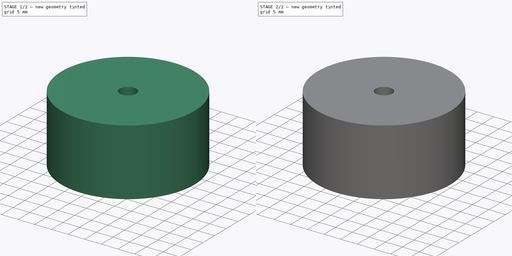
[diagram: build sequence overview — one tinted view per stage of 2, left to right]
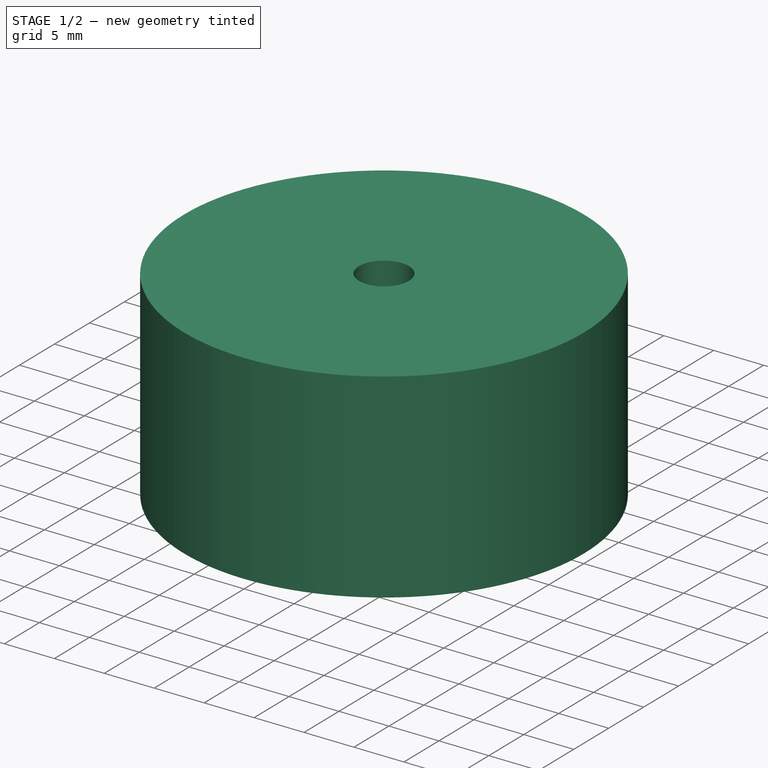
[diagram: stage 1 of 2 — iso view after this stage's code; geometry added in this stage tinted green]
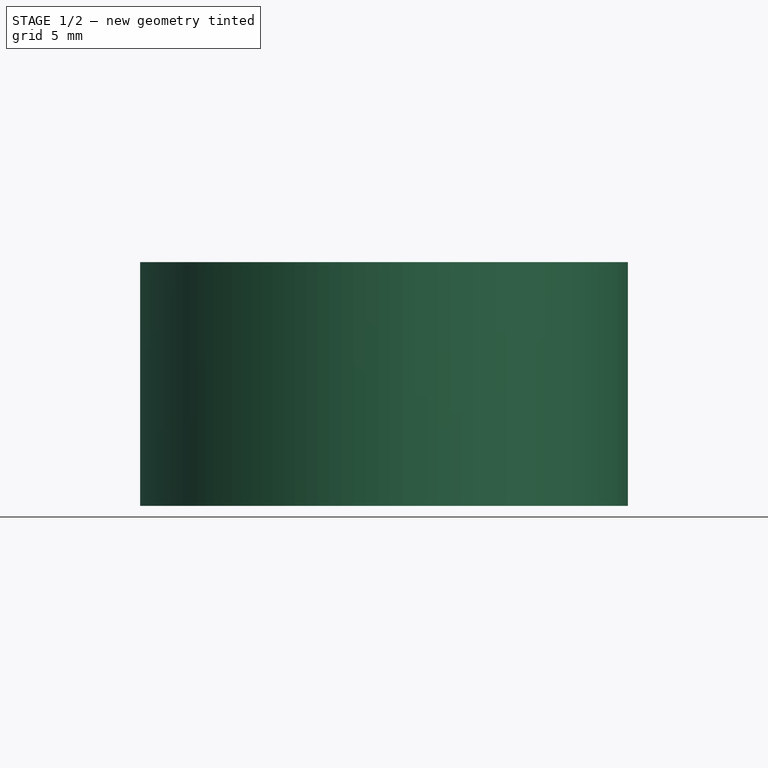
[diagram: stage 1 of 2 — front view after this stage's code; geometry added in this stage tinted green]
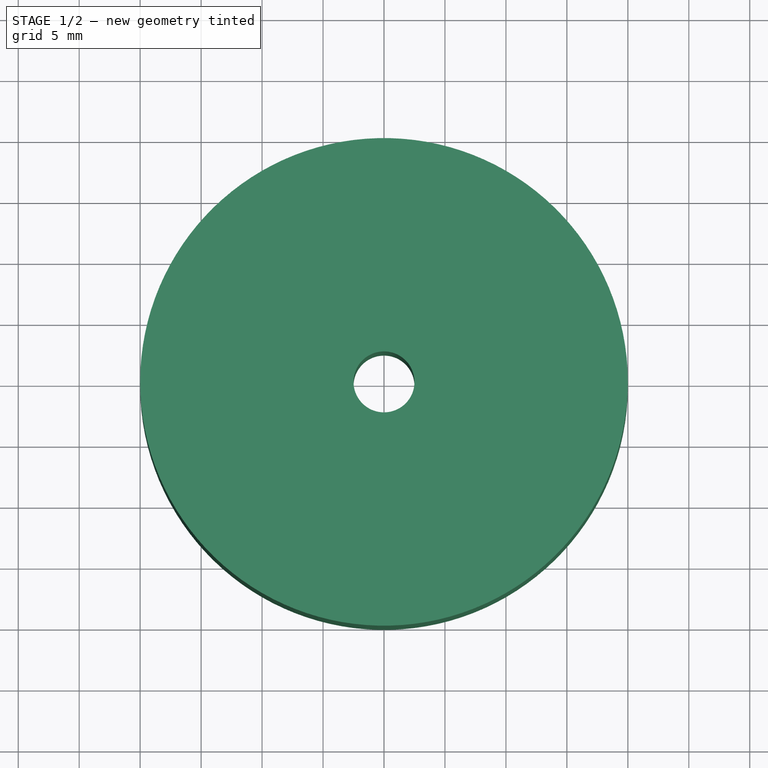
[diagram: stage 1 of 2 — top view after this stage's code; geometry added in this stage tinted green]
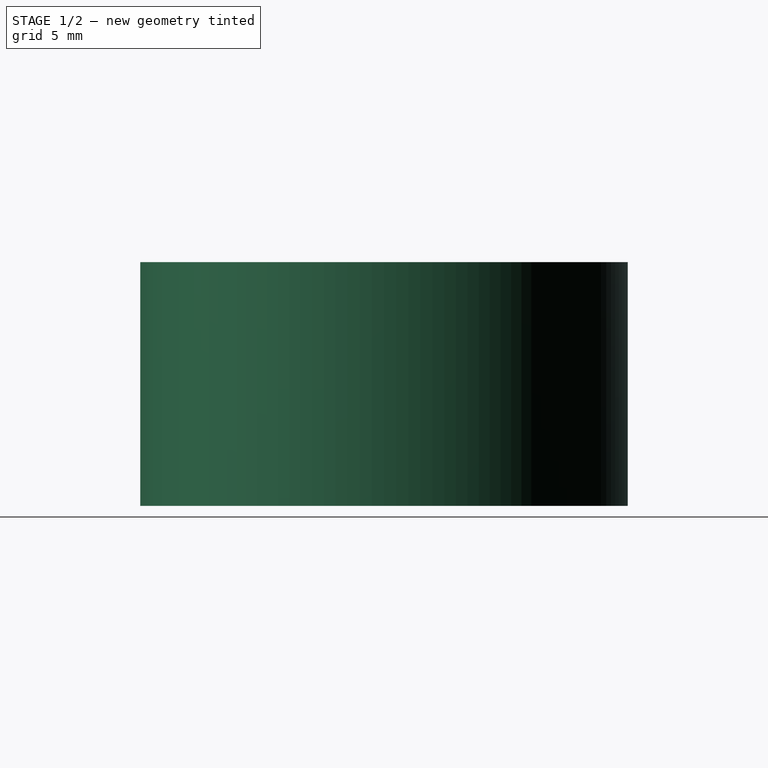
[diagram: stage 1 of 2 — right view after this stage's code; geometry added in this stage tinted green]
FCSTD DOCUMENT  (FreeCAD 0.19R24291 (Git))
Label: Foot Extension
License: All rights reserved
LicenseURL: http://en.wikipedia.org/wiki/All_rights_reserved
objects: Sketcher::SketchObject×2, PartDesign::Pad×2, PartDesign::Body×2
note: 8 computed .brp shape members not serialized (recipe doc carries the construction recipe); baked Part::Feature solids carry a one-line shape summary decoded from their .brp

FEATURE [PartDesign::Body] Body
  Group = -> [Sketch,Pad]
  Origin = -> Origin
  Tip = -> Pad
FEATURE [Sketcher::SketchObject] Sketch001
  FullyConstrained = true
  MapMode = 5
  Support = -> [XY_Plane001]
  sketch-geometry (2):
    g0: Circle CenterX=0 CenterY=0 CenterZ=0 NormalX=0 NormalY=0 NormalZ=1 AngleXU=0 Radius=2.5
    g1: Circle CenterX=0 CenterY=0 CenterZ=0 NormalX=0 NormalY=0 NormalZ=1 AngleXU=0 Radius=20
  constraints (4):
    c: Coincident(g0,g-1)
    c: Coincident(g1,g0)
    c: Radius(g0) = 2.5
    c: Radius(g1) = 20
FEATURE [PartDesign::Pad] Pad001
  Direction = (1,1,1)
  Length = 20
  Length2 = 100
  Profile = -> Sketch001
  Type = 0
FEATURE [PartDesign::Body] Body001
  Group = -> [Sketch001,Pad001]
  Origin = -> Origin001
  Tip = -> Pad001
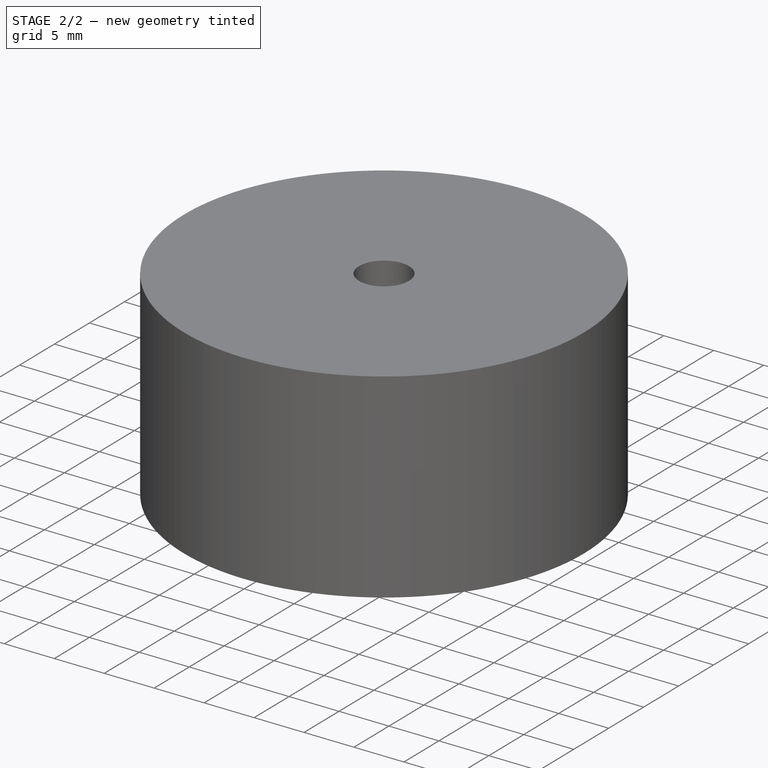
[diagram: stage 2 of 2 — iso view after this stage's code; geometry added in this stage tinted green]
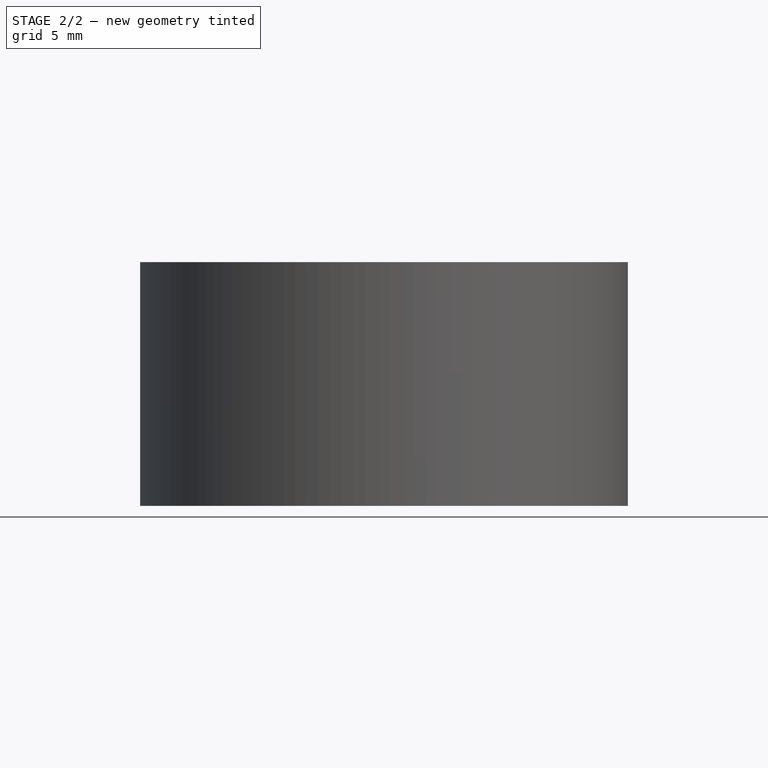
[diagram: stage 2 of 2 — front view after this stage's code; geometry added in this stage tinted green]
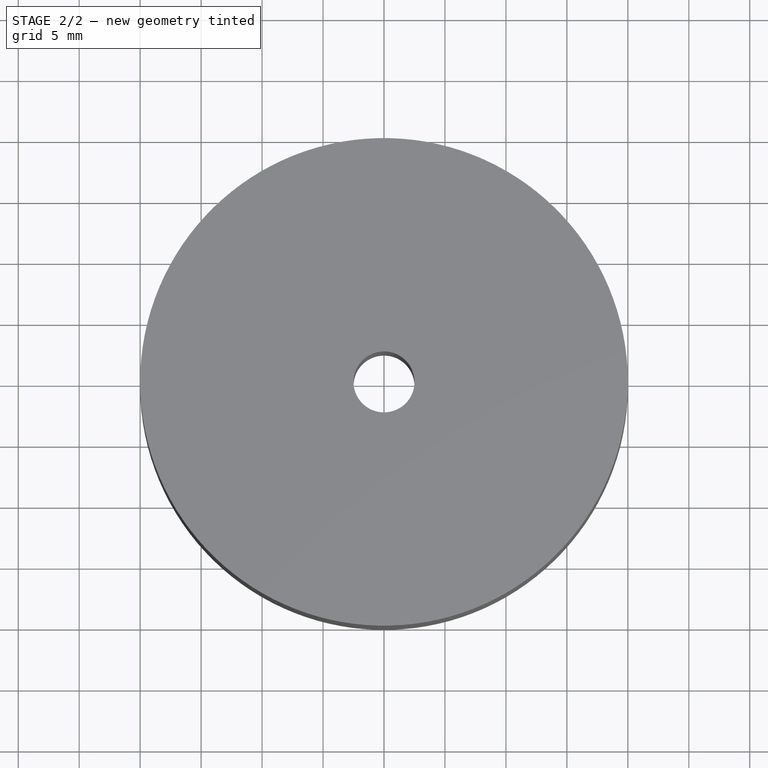
[diagram: stage 2 of 2 — top view after this stage's code; geometry added in this stage tinted green]
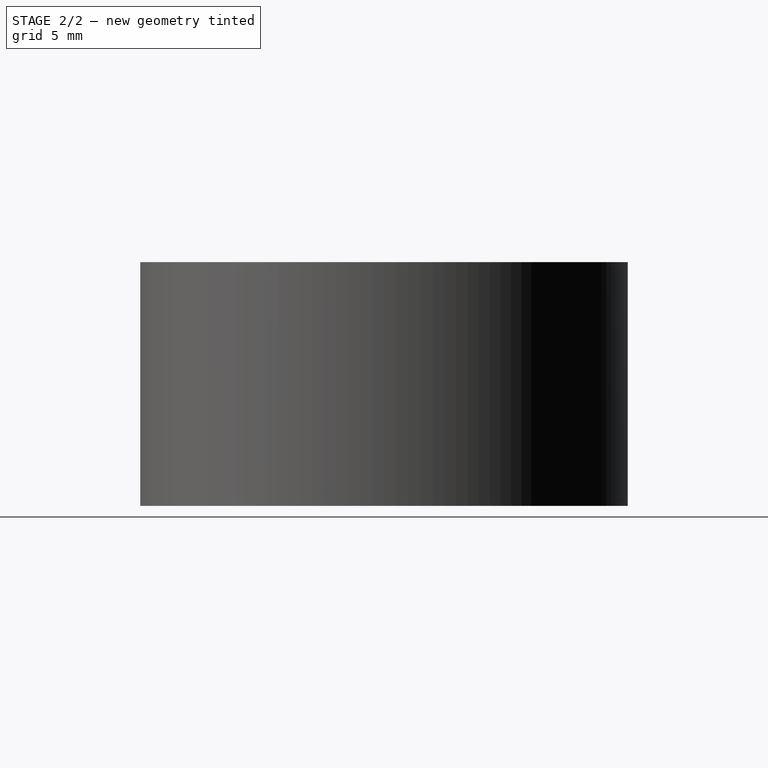
[diagram: stage 2 of 2 — right view after this stage's code; geometry added in this stage tinted green]
FEATURE [Sketcher::SketchObject] Sketch
  FullyConstrained = false
  MapMode = 5
  Support = -> [XY_Plane]
  sketch-geometry (16):
    g0: Circle CenterX=0 CenterY=0 CenterZ=0 NormalX=0 NormalY=0 NormalZ=1 AngleXU=0 Radius=2.5
    g1: Circle CenterX=0 CenterY=0 CenterZ=0 NormalX=0 NormalY=0 NormalZ=1 AngleXU=0 Radius=20
    g2: ArcOfCircle CenterX=0 CenterY=0 CenterZ=0 NormalX=0 NormalY=0 NormalZ=1 AngleXU=0 Radius=16 StartAngle=0.125328 EndAngle=2.23087
    g3: ArcOfCircle CenterX=0 CenterY=0 CenterZ=0 NormalX=0 NormalY=0 NormalZ=1 AngleXU=0 Radius=6 StartAngle=0.339837 EndAngle=2.01636
    g4: LineSegment StartX=5.65685 StartY=2 StartZ=0 EndX=15.8745 EndY=2 EndZ=0
    g5: LineSegment StartX=5.65685 StartY=-2 StartZ=0 EndX=15.8745 EndY=-2 EndZ=0
    g6: LineSegment StartX=-2.58579 StartY=5.41421 StartZ=0 EndX=-9.81076 EndY=12.6392 EndZ=0
    g7: LineSegment StartX=-5.41421 StartY=2.58579 StartZ=0 EndX=-12.6392 EndY=9.81076 EndZ=0
    g8: LineSegment StartX=0 StartY=0 StartZ=0 EndX=-17.9793 EndY=17.9793 EndZ=0
    g9: ArcOfCircle CenterX=0 CenterY=0 CenterZ=0 NormalX=0 NormalY=0 NormalZ=1 AngleXU=0 Radius=6 StartAngle=2.69603 EndAngle=3.58715
    g10: ArcOfCircle CenterX=0 CenterY=0 CenterZ=0 NormalX=0 NormalY=0 NormalZ=1 AngleXU=0 Radius=16 StartAngle=2.48152 EndAngle=3.80166
    g11: LineSegment StartX=-5.41421 StartY=-2.58579 StartZ=0 EndX=-12.6392 EndY=-9.81076 EndZ=0
    g12: LineSegment StartX=-9.81076 StartY=-12.6392 StartZ=0 EndX=-2.58579 EndY=-5.41421 EndZ=0
    g13: LineSegment StartX=0 StartY=0 StartZ=0 EndX=-23.2264 EndY=-23.2264 EndZ=0
    g14: ArcOfCircle CenterX=0 CenterY=0 CenterZ=0 NormalX=0 NormalY=0 NormalZ=1 AngleXU=0 Radius=16 StartAngle=4.05232 EndAngle=6.15786
    g15: ArcOfCircle CenterX=0 CenterY=0 CenterZ=0 NormalX=0 NormalY=0 NormalZ=1 AngleXU=0 Radius=6 StartAngle=4.26683 EndAngle=5.94335
  constraints (46):
    c: Coincident(g0,g-1)
    c: Coincident(g1,g0)
    c: Radius(g0) = 2.5
    c: Radius(g1) = 20
    c: Coincident(g2,g0)
    c: Coincident(g3,g0)
    c: Radius(g3) = 6
    c: Radius(g2) = 16
    c: Horizontal(g4)
    c: Horizontal(g5)
    c: Coincident(g3,g4)
    c: Coincident(g15,g5)
    c: Coincident(g2,g4)
    c: Coincident(g14,g5)
    c: DistanceY(g15,g0) = 2
    c: DistanceY(g0,g3) = 2
    c: PointOnObject(g7,g2)
    c: Angle(g-1,g7) = 2.35619
    c: Distance(g7,g6) = 4
    c: Parallel(g7,g6)
    c: Coincident(g8,g0)
    c: Angle(g-1,g8) = 2.35619
    c: Distance(g7,g8) = 2
    c: Equal(g3,g9)
    c: Coincident(g9,g7)
    c: Coincident(g3,g9)
    c: Coincident(g3,g6)
    c: Equal(g2,g10)
    c: Coincident(g2,g6)
    c: Coincident(g2,g10)
    c: PointOnObject(g10,g7)
    c: PointOnObject(g12,g9)
    c: Parallel(g11,g12)
    c: Distance(g11,g12) = 4
    c: Coincident(g13,g0)
    c: Angle(g13,g-1) = 2.35619
    c: Angle(g12) = 0.785398
    c: Distance(g12,g13) = 2
    c: Equal(g10,g14)
    c: Coincident(g14,g12)
    c: Coincident(g10,g14)
    c: Coincident(g10,g11)
    c: Equal(g9,g15)
    c: Coincident(g9,g11)
    c: Coincident(g9,g15)
    c: PointOnObject(g15,g12)
FEATURE [PartDesign::Pad] Pad
  Direction = (1,1,1)
  Length = 20
  Length2 = 100
  Profile = -> Sketch
  Type = 0
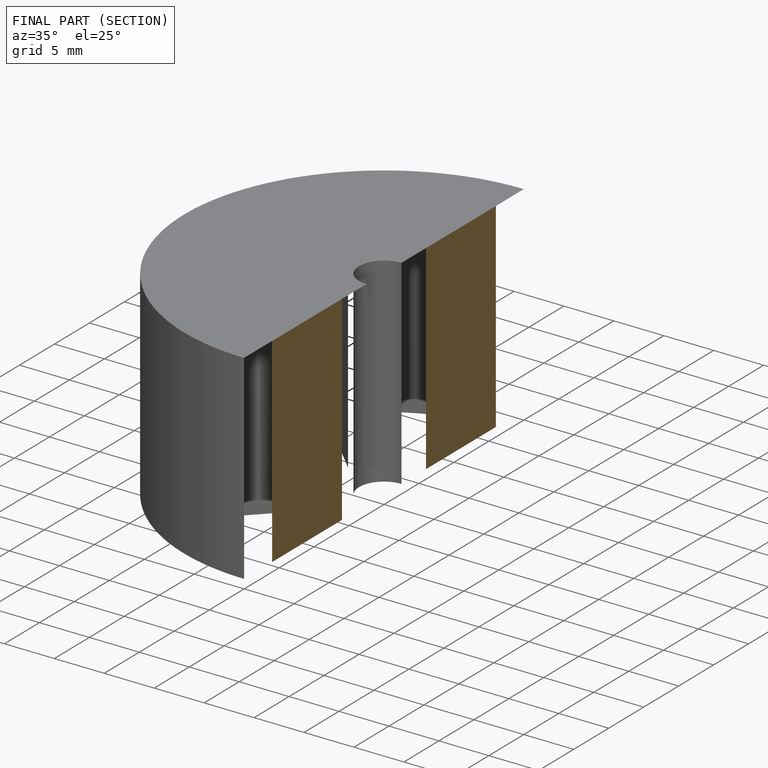
[diagram: finished part — half-section view (interior)]
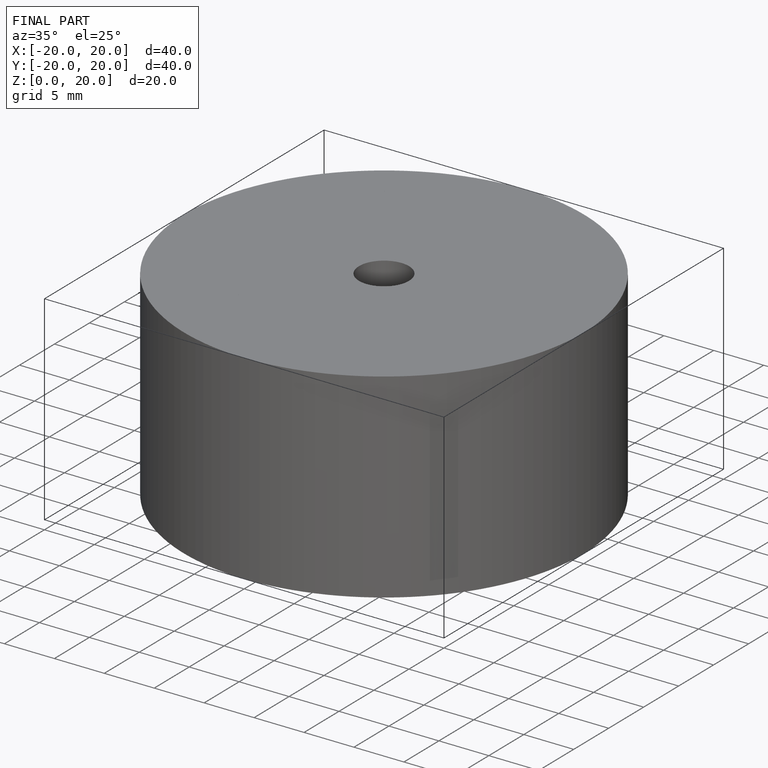
[diagram: finished part — iso view with bounding-box wireframe]
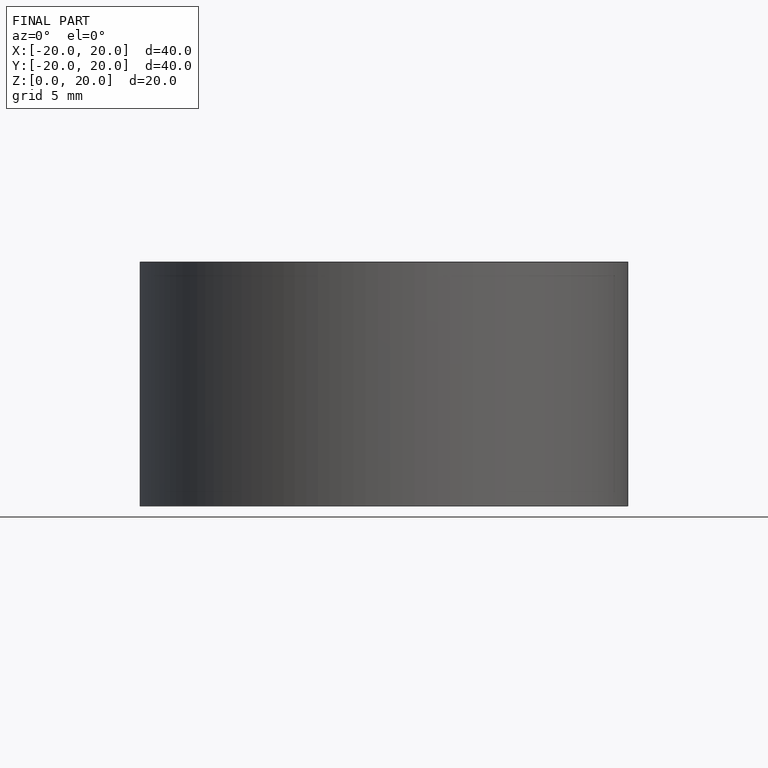
[diagram: finished part — front view with bounding-box wireframe]
